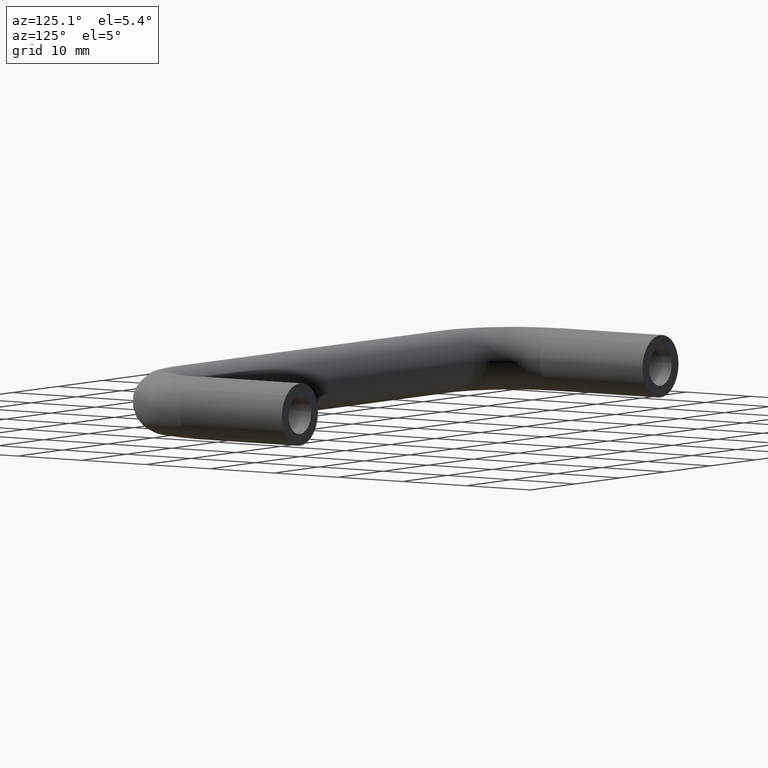
[diagram: clean part render]
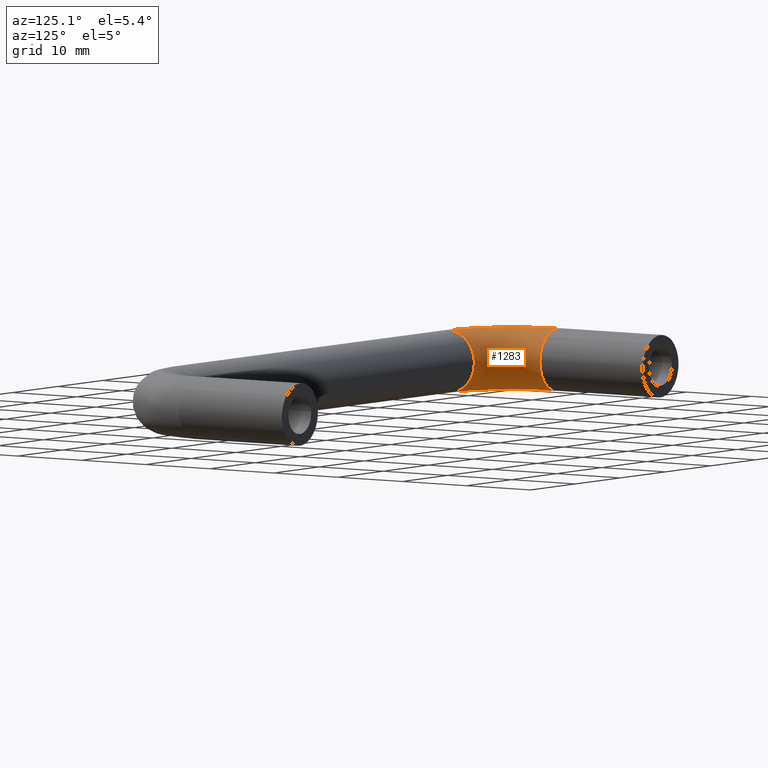
[diagram: same view with one face highlighted and labeled with its STEP entity id]
A machine part, auxiliary view. The second image highlights one B-rep face of the part: STEP entity #1283.
In plain terms, the highlighted face is a freeform B-spline surface patch.
Its self-contained STEP definition (entity closure, byte-faithful):
#667=CARTESIAN_POINT('',(9.999999999955744,-23.512770200805161,-3.132680629395788));
#668=VERTEX_POINT('',#667);
#674=CARTESIAN_POINT('',(10.0,-22.0,0.0));
#675=VERTEX_POINT('',#674);
#676=CARTESIAN_POINT('',(10.0,-22.0,0.0));
#677=CARTESIAN_POINT('',(10.0,-21.999999999999996,-1.931598371755627));
#678=CARTESIAN_POINT('',(9.999999999955744,-23.512770200805161,-3.132680629395788));
#686=(BOUNDED_CURVE()B_SPLINE_CURVE(2,(#676,#677,#678),.UNSPECIFIED.,.F.,.U.)B_SPLINE_CURVE_WITH_KNOTS((3,3),(0.0,0.142272863630943),.UNSPECIFIED.)CURVE()GEOMETRIC_REPRESENTATION_ITEM()RATIONAL_B_SPLINE_CURVE((1.0,0.833316972085303,0.856349717771409))REPRESENTATION_ITEM(''));
#687=EDGE_CURVE('',#675,#668,#686,.T.);
#689=CARTESIAN_POINT('',(9.999999999381382,-26.050264162204599,3.999684176781694));
#690=VERTEX_POINT('',#689);
#691=CARTESIAN_POINT('',(9.999999999381382,-26.050264162204602,3.999684176781694));
#692=CARTESIAN_POINT('',(10.0,-26.025133074639072,4.000000000000000));
#693=CARTESIAN_POINT('',(10.0,-26.0,4.0));
#694=CARTESIAN_POINT('',(10.000000000000002,-22.000000000000007,4.000000000000000));
#695=CARTESIAN_POINT('',(10.0,-22.0,0.0));
#703=(BOUNDED_CURVE()B_SPLINE_CURVE(2,(#691,#692,#693,#694,#695),.UNSPECIFIED.,.F.,.U.)B_SPLINE_CURVE_WITH_KNOTS((3,2,3),(0.747784295686822,0.750000000000000,1.0),.UNSPECIFIED.)CURVE()GEOMETRIC_REPRESENTATION_ITEM()RATIONAL_B_SPLINE_CURVE((0.994854295103350,0.997404140927098,1.0,0.707106781186548,1.0))REPRESENTATION_ITEM(''));
#704=EDGE_CURVE('',#690,#675,#703,.T.);
#836=CARTESIAN_POINT('',(9.999999999891141,-25.721066993475230,-3.990262695346141));
#837=VERTEX_POINT('',#836);
#853=CARTESIAN_POINT('',(9.999999999955744,-23.512770200805161,-3.132680629395788));
#854=CARTESIAN_POINT('',(9.999999999927331,-24.483982278594308,-3.903786243676122));
#855=CARTESIAN_POINT('',(9.999999999891141,-25.721066993475230,-3.990262695346142));
#863=(BOUNDED_CURVE()B_SPLINE_CURVE(2,(#853,#854,#855),.UNSPECIFIED.,.F.,.U.)B_SPLINE_CURVE_WITH_KNOTS((3,3),(0.142272863630943,0.237833686515912),.UNSPECIFIED.)CURVE()GEOMETRIC_REPRESENTATION_ITEM()RATIONAL_B_SPLINE_CURVE((0.856349717771409,0.871820188210339,0.972879876346409))REPRESENTATION_ITEM(''));
#864=EDGE_CURVE('',#668,#837,#863,.T.);
#888=CARTESIAN_POINT('',(-0.050264159701147,-16.000000000000160,3.999684176813156));
#889=VERTEX_POINT('',#888);
#890=CARTESIAN_POINT('',(2.490057939572067,-15.999999999999970,3.130433110221893));
#891=VERTEX_POINT('',#890);
#892=CARTESIAN_POINT('',(-0.050264159701147,-16.000000000000163,3.999684176813156));
#893=CARTESIAN_POINT('',(-0.025133072135318,-16.000000000000007,4.0));
#894=CARTESIAN_POINT('',(1.959370E-015,-16.0,4.0));
#895=CARTESIAN_POINT('',(1.396861663518624,-15.999999999999996,4.000000000000000));
#896=CARTESIAN_POINT('',(2.490057939572067,-15.999999999999972,3.130433110221893));
#904=(BOUNDED_CURVE()B_SPLINE_CURVE(2,(#892,#893,#894,#895,#896),.UNSPECIFIED.,.F.,.U.)B_SPLINE_CURVE_WITH_KNOTS((3,2,3),(0.747784295906977,0.750000000000000,0.857863818689484),.UNSPECIFIED.)CURVE()GEOMETRIC_REPRESENTATION_ITEM()RATIONAL_B_SPLINE_CURVE((0.994854295610061,0.997404141185025,1.0,0.873629675802106,0.856305637500315))REPRESENTATION_ITEM(''));
#905=EDGE_CURVE('',#889,#891,#904,.T.);
#1002=CARTESIAN_POINT('',(4.000000000000002,-16.0,0.0));
#1003=VERTEX_POINT('',#1002);
#1004=CARTESIAN_POINT('',(2.490057939572067,-15.999999999999966,3.130433110221892));
#1005=CARTESIAN_POINT('',(4.000000000000002,-16.000000000000004,1.929371919297421));
#1006=CARTESIAN_POINT('',(4.000000000000002,-16.0,0.0));
#1014=(BOUNDED_CURVE()B_SPLINE_CURVE(2,(#1004,#1005,#1006),.UNSPECIFIED.,.F.,.U.)B_SPLINE_CURVE_WITH_KNOTS((3,3),(0.857863818689483,1.0),.UNSPECIFIED.)CURVE()GEOMETRIC_REPRESENTATION_ITEM()RATIONAL_B_SPLINE_CURVE((0.856305637500316,0.833477105384441,1.0))REPRESENTATION_ITEM(''));
#1015=EDGE_CURVE('',#891,#1003,#1014,.T.);
#1017=CARTESIAN_POINT('',(0.278933007919310,-16.000000000712049,-3.990262695248658));
#1018=VERTEX_POINT('',#1017);
#1019=CARTESIAN_POINT('',(4.000000000000002,-16.0,0.0));
#1020=CARTESIAN_POINT('',(4.000000000000003,-15.999999999999998,-3.730147386034906));
#1021=CARTESIAN_POINT('',(0.278933007919310,-16.000000000712053,-3.990262695248659));
#1029=(BOUNDED_CURVE()B_SPLINE_CURVE(2,(#1019,#1020,#1021),.UNSPECIFIED.,.F.,.U.)B_SPLINE_CURVE_WITH_KNOTS((3,3),(0.0,0.237833686395701),.UNSPECIFIED.)CURVE()GEOMETRIC_REPRESENTATION_ITEM()RATIONAL_B_SPLINE_CURVE((1.0,0.721360504197176,0.972879876092152))REPRESENTATION_ITEM(''));
#1030=EDGE_CURVE('',#1003,#1018,#1029,.T.);
#1218=CARTESIAN_POINT('',(-0.050264159701147,-16.000000000000160,3.999684176813156));
#1219=CARTESIAN_POINT('',(-0.050264159533088,-26.050264158296176,3.999684176815264));
#1220=CARTESIAN_POINT('',(9.999999999381382,-26.050264162204602,3.999684176781694));
#1228=(BOUNDED_CURVE()B_SPLINE_CURVE(2,(#1218,#1219,#1220),.UNSPECIFIED.,.F.,.U.)B_SPLINE_CURVE_WITH_KNOTS((3,3),(-1.744561813315557,-0.255438186814034),.UNSPECIFIED.)CURVE()GEOMETRIC_REPRESENTATION_ITEM()RATIONAL_B_SPLINE_CURVE((0.894678510042403,0.632633241455684,0.894678509996794))REPRESENTATION_ITEM(''));
#1229=EDGE_CURVE('',#889,#690,#1228,.T.);
#1234=CARTESIAN_POINT('',(0.278933007919310,-16.000000000712049,-3.990262695248659));
#1235=CARTESIAN_POINT('',(0.278933007725863,-25.721066993480537,-3.990262695361729));
#1236=CARTESIAN_POINT('',(9.999999999891141,-25.721066993475233,-3.990262695346141));
#1244=(BOUNDED_CURVE()B_SPLINE_CURVE(2,(#1234,#1235,#1236),.UNSPECIFIED.,.F.,.U.)B_SPLINE_CURVE_WITH_KNOTS((3,3),(-1.744561813161335,-0.255438186707992),.UNSPECIFIED.)CURVE()GEOMETRIC_REPRESENTATION_ITEM()RATIONAL_B_SPLINE_CURVE((0.874553433360133,0.618402663307043,0.874553433405088))REPRESENTATION_ITEM(''));
#1245=EDGE_CURVE('',#1018,#837,#1244,.T.);
#1250=CARTESIAN_POINT('',(-0.025936135449512,-15.301133571925680,3.999684176815263));
#1251=CARTESIAN_POINT('',(-0.829533074504246,-26.829533371878064,3.999684176815264));
#1252=CARTESIAN_POINT('',(10.698866703381745,-26.025936116258958,3.999684176815263));
#1253=CARTESIAN_POINT('',(3.964066264704267,-15.579260091756980,4.049948336348672));
#1254=CARTESIAN_POINT('',(3.480275244245767,-22.519724934782769,4.049948336348670));
#1255=CARTESIAN_POINT('',(10.420740073986888,-22.035933723742410,4.049948336348671));
#1256=CARTESIAN_POINT('',(4.014208753039358,-15.582755316666056,0.050264159533408));
#1257=CARTESIAN_POINT('',(3.534436743833103,-22.465563433708180,0.050264159533408));
#1258=CARTESIAN_POINT('',(10.417244847700911,-21.985791235503292,0.050264159533408));
#1259=CARTESIAN_POINT('',(4.061560984383785,-15.586056044332189,-3.726851351358790));
#1260=CARTESIAN_POINT('',(3.585584342278590,-22.414415833858214,-3.726851351358790));
#1261=CARTESIAN_POINT('',(10.413944118734522,-21.938439004249513,-3.726851351358791));
#1262=CARTESIAN_POINT('',(0.302464164109146,-15.324024994854216,-3.990262695361730));
#1263=CARTESIAN_POINT('',(-0.474810896175895,-26.474811183809212,-3.990262695361728));
#1264=CARTESIAN_POINT('',(10.675975271435492,-25.697535817328902,-3.990262695361729));
#1272=(BOUNDED_SURFACE()B_SPLINE_SURFACE(2,2,((#1250,#1253,#1256,#1259,#1262),(#1251,#1254,#1257,#1260,#1263),(#1252,#1255,#1258,#1261,#1264)),.UNSPECIFIED.,.F.,.F.,.U.)B_SPLINE_SURFACE_WITH_KNOTS((3,3),(3,2,3),(0.0,18.315339815025052),(0.0,6.627416997969519,12.989737316020260),.UNSPECIFIED.)GEOMETRIC_REPRESENTATION_ITEM()RATIONAL_B_SPLINE_SURFACE(((0.922164430830710,0.652068722409428,0.922164430830710,0.662872550746279,0.901421080423955),(0.605147314876259,0.427903769965834,0.605147314876259,0.434993511762250,0.591535010627138),(0.922164442367337,0.652068730567055,0.922164442367337,0.662872559039067,0.901421091701076)))REPRESENTATION_ITEM('')SURFACE());
#1273=ORIENTED_EDGE('',*,*,#687,.T.);
#1274=ORIENTED_EDGE('',*,*,#864,.T.);
#1275=ORIENTED_EDGE('',*,*,#1245,.F.);
#1276=ORIENTED_EDGE('',*,*,#1030,.F.);
#1277=ORIENTED_EDGE('',*,*,#1015,.F.);
#1278=ORIENTED_EDGE('',*,*,#905,.F.);
#1279=ORIENTED_EDGE('',*,*,#1229,.T.);
#1280=ORIENTED_EDGE('',*,*,#704,.T.);
#1281=EDGE_LOOP('',(#1273,#1274,#1275,#1276,#1277,#1278,#1279,#1280));
#1282=FACE_OUTER_BOUND('',#1281,.T.);
#1283=ADVANCED_FACE('',(#1282),#1272,.T.);